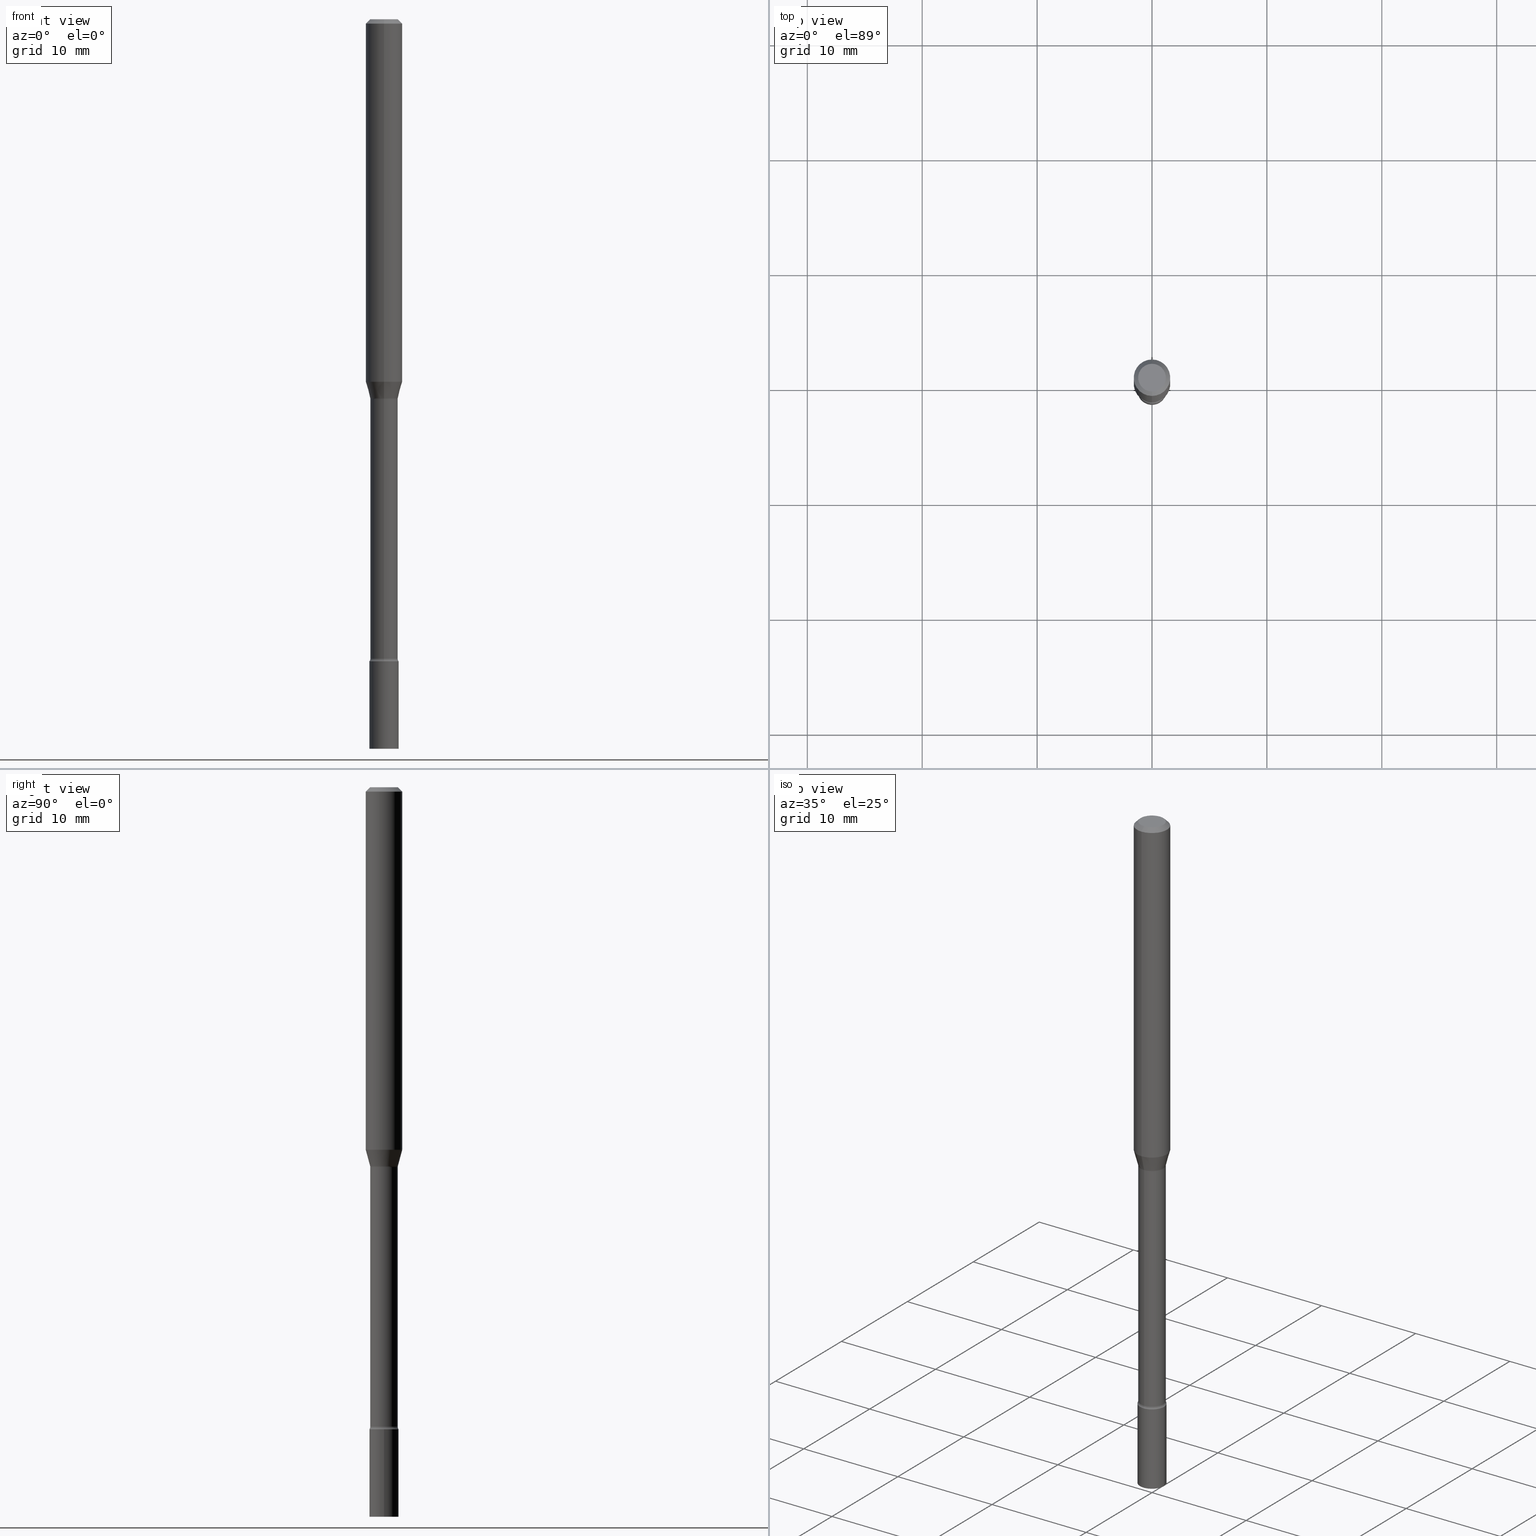
[diagram: canonical four-view strip — front | top / right | iso, engineering-drawing reading convention]
A machine part, canonical four-view strip (front | top / right | iso — engineering-drawing reading convention). The complete STEP part file that produces these views, byte-faithful:
ISO-10303-21;
HEADER;
FILE_DESCRIPTION (( 'STEP AP203' ),
    '1' );
FILE_NAME ('03450.STEP',
    '2024-03-08T21:24:03',
    ( '' ),
    ( '' ),
    'SwSTEP 2.0',
    'SolidWorks 2023',
    '' );
FILE_SCHEMA (( 'CONFIG_CONTROL_DESIGN' ));
ENDSEC;

DATA;
#1 = EDGE_CURVE ( 'NONE', #82, #221, #288, .T. ) ;
#2 = EDGE_LOOP ( 'NONE', ( #352, #120, #276, #243 ) ) ;
#3 = ORIENTED_EDGE ( 'NONE', *, *, #309, .F. ) ;
#4 = CARTESIAN_POINT ( 'NONE',  ( 0.000000000000000000, 0.000000000000000000, 0.000000000000000000 ) ) ;
#5 = DIRECTION ( 'NONE',  ( -1.000000000000000000, 6.982962677686265922E-15, -4.883557194083112340E-29 ) ) ;
#6 = APPLICATION_PROTOCOL_DEFINITION ( 'international standard', 'config_control_design', 1994, #441 ) ;
#7 = DIRECTION ( 'NONE',  ( -2.445468806185136877E-29, 3.491481338843145188E-15, 1.000000000000000000 ) ) ;
#8 = AXIS2_PLACEMENT_3D ( 'NONE', #122, #209, #399 ) ;
#9 = CIRCLE ( 'NONE', #197, 0.06250000000000000000 ) ;
#10 = EDGE_CURVE ( 'NONE', #221, #286, #338, .T. ) ;
#11 = DIRECTION ( 'NONE',  ( -2.445545263393186245E-29, 3.491371847769544536E-15, 1.000000000000000000 ) ) ;
#12 = FACE_OUTER_BOUND ( 'NONE', #202, .T. ) ;
#13 = CC_DESIGN_DATE_AND_TIME_ASSIGNMENT ( #222, #327, ( #64 ) ) ;
#14 = CC_DESIGN_PERSON_AND_ORGANIZATION_ASSIGNMENT ( #258, #289, ( #19 ) ) ;
#15 = FACE_OUTER_BOUND ( 'NONE', #52, .T. ) ;
#16 = ORIENTED_EDGE ( 'NONE', *, *, #88, .F. ) ;
#17 = PERSON_AND_ORGANIZATION ( #25, #78 ) ;
#18 = AXIS2_PLACEMENT_3D ( 'NONE', #323, #296, #102 ) ;
#19 = PRODUCT_DEFINITION_FORMATION_WITH_SPECIFIED_SOURCE ( 'ANY', '', #123, .NOT_KNOWN. ) ;
#20 = VERTEX_POINT ( 'NONE', #104 ) ;
#21 = EDGE_CURVE ( 'NONE', #457, #286, #61, .T. ) ;
#22 = DIRECTION ( 'NONE',  ( 6.982962677686265922E-15, 1.000000000000000000, -3.491371847769544536E-15 ) ) ;
#23 = ORIENTED_EDGE ( 'NONE', *, *, #427, .T. ) ;
#24 = CARTESIAN_POINT ( 'NONE',  ( -4.364351673553610517E-16, -0.06250000000000431599, -1.242153212482682623 ) ) ;
#25 = PERSON ( 'UNSPECIFIED', 'UNSPECIFIED', 'UNSPECIFIED', ('UNSPECIFIED'), ('UNSPECIFIED'), ('UNSPECIFIED') ) ;
#26 = ORIENTED_EDGE ( 'NONE', *, *, #303, .T. ) ;
#27 = CARTESIAN_POINT ( 'NONE',  ( 3.183938729182273846E-29, -4.545820674074168441E-15, -1.301974787463811456 ) ) ;
#28 = CIRCLE ( 'NONE', #507, 0.05000000000000000278 ) ;
#29 = DIRECTION ( 'NONE',  ( -2.445468806185136597E-29, 3.491481338843145583E-15, 1.000000000000000000 ) ) ;
#30 = PLANE ( 'NONE',  #254 ) ;
#31 = CC_DESIGN_PERSON_AND_ORGANIZATION_ASSIGNMENT ( #343, #180, ( #19 ) ) ;
#32 = CARTESIAN_POINT ( 'NONE',  ( 0.000000000000000000, 0.000000000000000000, 0.000000000000000000 ) ) ;
#33 = DIRECTION ( 'NONE',  ( -2.445545263393186245E-29, 3.491371847769544536E-15, 1.000000000000000000 ) ) ;
#34 = AXIS2_PLACEMENT_3D ( 'NONE', #509, #66, #185 ) ;
#35 = CC_DESIGN_SECURITY_CLASSIFICATION ( #84, ( #19 ) ) ;
#36 = FACE_OUTER_BOUND ( 'NONE', #398, .T. ) ;
#37 = CARTESIAN_POINT ( 'NONE',  ( 3.174543969192077220E-29, -4.532123616540823741E-15, -1.298092501787273534 ) ) ;
#38 = ORIENTED_EDGE ( 'NONE', *, *, #283, .F. ) ;
#39 = CARTESIAN_POINT ( 'NONE',  ( -0.05000000000000000278, -7.849709778401342953E-15, -2.200000000000000178 ) ) ;
#40 = ORIENTED_EDGE ( 'NONE', *, *, #106, .T. ) ;
#41 =( GEOMETRIC_REPRESENTATION_CONTEXT ( 3 ) GLOBAL_UNCERTAINTY_ASSIGNED_CONTEXT ( ( #389 ) ) GLOBAL_UNIT_ASSIGNED_CONTEXT ( ( #299, #74, #160 ) ) REPRESENTATION_CONTEXT ( 'NONE', 'WORKASPACE' ) );
#42 = ORIENTED_EDGE ( 'NONE', *, *, #273, .T. ) ;
#43 = CARTESIAN_POINT ( 'NONE',  ( 3.339550858073009772E-16, 0.04699999999999546207, -1.301974787463811678 ) ) ;
#44 = EDGE_LOOP ( 'NONE', ( #256, #247, #284, #330 ) ) ;
#45 = DIRECTION ( 'NONE',  ( -2.445545263393186245E-29, 3.491371847769544536E-15, 1.000000000000000000 ) ) ;
#46 = ORIENTED_EDGE ( 'NONE', *, *, #21, .F. ) ;
#47 = DIRECTION ( 'NONE',  ( -2.445468806185136597E-29, 3.491481338843145583E-15, 1.000000000000000000 ) ) ;
#48 = CARTESIAN_POINT ( 'NONE',  ( 5.380199579465010019E-29, -7.681018065092997900E-15, -2.200000000000000178 ) ) ;
#49 = AXIS2_PLACEMENT_3D ( 'NONE', #466, #293, #148 ) ;
#50 = APPROVAL_PERSON_ORGANIZATION ( #17, #385, #418 ) ;
#51 = DIRECTION ( 'NONE',  ( -2.445545263393186245E-29, 3.491371847769544536E-15, 1.000000000000000000 ) ) ;
#52 = EDGE_LOOP ( 'NONE', ( #332, #376, #435, #519 ) ) ;
#53 = FACE_OUTER_BOUND ( 'NONE', #198, .T. ) ;
#54 = ORIENTED_EDGE ( 'NONE', *, *, #10, .T. ) ;
#55 = COORDINATED_UNIVERSAL_TIME_OFFSET ( 5, 0, .BEHIND. ) ;
#56 = DIRECTION ( 'NONE',  ( 1.839019923739596765E-15, 0.2588190451025244587, 0.9659258262890673130 ) ) ;
#57 = CIRCLE ( 'NONE', #497, 0.01500000000000001853 ) ;
#58 = EDGE_LOOP ( 'NONE', ( #96, #213, #260, #92 ) ) ;
#59 = CALENDAR_DATE ( 2024, 8, 3 ) ;
#60 = DIRECTION ( 'NONE',  ( -2.438088387897960049E-29, 3.491481338843145188E-15, 1.000000000000000000 ) ) ;
#61 = LINE ( 'NONE', #184, #479 ) ;
#62 = DATE_AND_TIME ( #504, #244 ) ;
#63 = DIRECTION ( 'NONE',  ( 2.445545263393185965E-29, -3.491371847769544536E-15, -1.000000000000000000 ) ) ;
#64 = PRODUCT_DEFINITION ( 'UNKNOWN', '', #19, #187 ) ;
#65 = ADVANCED_FACE ( 'NONE', ( #252 ), #464, .T. ) ;
#66 = DIRECTION ( 'NONE',  ( -2.445545263393186245E-29, 3.491371847769544536E-15, 1.000000000000000000 ) ) ;
#67 = ADVANCED_FACE ( 'NONE', ( #12 ), #306, .F. ) ;
#68 = CIRCLE ( 'NONE', #472, 0.04751111260566399236 ) ;
#69 = AXIS2_PLACEMENT_3D ( 'NONE', #319, #200, #130 ) ;
#70 = DIRECTION ( 'NONE',  ( 1.000000000000000000, -6.982962677686265922E-15, 4.876176775795935793E-29 ) ) ;
#71 = DIRECTION ( 'NONE',  ( -1.807323732225326589E-15, -0.2588190451025176864, 0.9659258262890690894 ) ) ;
#72 = CARTESIAN_POINT ( 'NONE',  ( -3.281992458512017981E-16, -0.04700000000000777167, -2.190999999999999837 ) ) ;
#73 = ADVANCED_FACE ( 'NONE', ( #295 ), #354, .T. ) ;
#74 =( NAMED_UNIT ( * ) PLANE_ANGLE_UNIT ( ) SI_UNIT ( $, .RADIAN. ) );
#75 = VECTOR ( 'NONE', #264, 39.37007874015748143 ) ;
#76 = DIRECTION ( 'NONE',  ( -6.982962677686265922E-15, -1.000000000000000000, 4.370956789862821150E-15 ) ) ;
#77 = AXIS2_PLACEMENT_3D ( 'NONE', #287, #100, #371 ) ;
#78 = ORGANIZATION ( 'UNSPECIFIED', 'UNSPECIFIED', '' ) ;
#79 = DIRECTION ( 'NONE',  ( -6.982962677686266711E-15, -1.000000000000000000, 3.491371847769544930E-15 ) ) ;
#80 = VERTEX_POINT ( 'NONE', #72 ) ;
#81 = PLANE ( 'NONE',  #520 ) ;
#82 = VERTEX_POINT ( 'NONE', #486 ) ;
#83 = CARTESIAN_POINT ( 'NONE',  ( -4.364351673553912750E-16, -0.06250000000000005551, -0.01499999999999981209 ) ) ;
#84 = SECURITY_CLASSIFICATION ( '', '', #378 ) ;
#85 = MECHANICAL_CONTEXT ( 'NONE', #450, 'mechanical' ) ;
#86 = ORIENTED_EDGE ( 'NONE', *, *, #251, .F. ) ;
#87 = CARTESIAN_POINT ( 'NONE',  ( 0.05000000000000000278, -3.491481338843133848E-16, 2.438088387897968247E-30 ) ) ;
#88 = EDGE_CURVE ( 'NONE', #80, #205, #423, .T. ) ;
#89 = APPROVAL_STATUS ( 'not_yet_approved' ) ;
#90 = ORIENTED_EDGE ( 'NONE', *, *, #502, .T. ) ;
#91 = EDGE_CURVE ( 'NONE', #440, #216, #68, .T. ) ;
#92 = ORIENTED_EDGE ( 'NONE', *, *, #426, .F. ) ;
#93 = CARTESIAN_POINT ( 'NONE',  ( 3.446132268437026374E-16, 0.04699999999999247141, -2.191000000000000281 ) ) ;
#94 = CARTESIAN_POINT ( 'NONE',  ( 5.358189672094472202E-29, -7.649595718463072827E-15, -2.191000000000000281 ) ) ;
#95 = DIRECTION ( 'NONE',  ( -2.445545263393186245E-29, 3.491371847769544536E-15, 1.000000000000000000 ) ) ;
#96 = ORIENTED_EDGE ( 'NONE', *, *, #267, .F. ) ;
#97 = CARTESIAN_POINT ( 'NONE',  ( 6.113672015462842613E-29, -8.728703347107864943E-15, -2.500000000000000000 ) ) ;
#98 = EDGE_CURVE ( 'NONE', #500, #391, #195, .T. ) ;
#99 = ORIENTED_EDGE ( 'NONE', *, *, #1, .T. ) ;
#100 = DIRECTION ( 'NONE',  ( -2.445545263393186245E-29, 3.491371847769544536E-15, 1.000000000000000000 ) ) ;
#101 = DIRECTION ( 'NONE',  ( -2.445545263393186245E-29, 3.491371847769544536E-15, 1.000000000000000000 ) ) ;
#102 = DIRECTION ( 'NONE',  ( -6.982962677686265922E-15, -1.000000000000000000, 3.491371847769544536E-15 ) ) ;
#103 = TOROIDAL_SURFACE ( 'NONE', #307, 0.06200000000000000649, 0.01500000000000002373 ) ;
#104 = CARTESIAN_POINT ( 'NONE',  ( -3.281992458512227029E-16, -0.04700000000000454509, -1.301974787463811012 ) ) ;
#105 = CARTESIAN_POINT ( 'NONE',  ( -4.329436860164957593E-16, -0.06200000000000776418, -2.190999999999999837 ) ) ;
#106 = EDGE_CURVE ( 'NONE', #463, #238, #456, .T. ) ;
#107 = CARTESIAN_POINT ( 'NONE',  ( 3.668317895089786549E-31, -5.237057771654327552E-17, -0.01500000000000003067 ) ) ;
#108 = PERSON_AND_ORGANIZATION ( #25, #78 ) ;
#109 = CARTESIAN_POINT ( 'NONE',  ( 6.113672015462842613E-29, -8.728703347107864943E-15, -2.500000000000000000 ) ) ;
#110 = DIRECTION ( 'NONE',  ( 6.982962677686265922E-15, 1.000000000000000000, -3.483106191921935554E-15 ) ) ;
#111 = DIRECTION ( 'NONE',  ( -6.982962677686265922E-15, -1.000000000000000000, 3.491371847769544536E-15 ) ) ;
#112 = AXIS2_PLACEMENT_3D ( 'NONE', #48, #405, #443 ) ;
#113 = CARTESIAN_POINT ( 'NONE',  ( 4.440892098500625669E-16, 0.06250000000000000000, -2.182107404855965335E-16 ) ) ;
#114 = ADVANCED_FACE ( 'NONE', ( #170 ), #382, .F. ) ;
#115 = CARTESIAN_POINT ( 'NONE',  ( 5.358189672094472202E-29, -7.649595718463072827E-15, -2.191000000000000281 ) ) ;
#116 = CARTESIAN_POINT ( 'NONE',  ( 5.380031373607300737E-29, -7.681258945454920203E-15, -2.200000000000000178 ) ) ;
#117 = CARTESIAN_POINT ( 'NONE',  ( 7.072299677120293294E-46, -1.009673726399458188E-31, -2.891911175386506764E-17 ) ) ;
#118 = AXIS2_PLACEMENT_3D ( 'NONE', #97, #47, #409 ) ;
#119 =( LENGTH_UNIT ( ) NAMED_UNIT ( * ) SI_UNIT ( $, .METRE. ) );
#120 = ORIENTED_EDGE ( 'NONE', *, *, #511, .T. ) ;
#121 = ORIENTED_EDGE ( 'NONE', *, *, #297, .F. ) ;
#122 = CARTESIAN_POINT ( 'NONE',  ( 5.358022154351634795E-29, -7.649835613405333139E-15, -2.191000000000000281 ) ) ;
#123 = PRODUCT ( '03450', '03450', '', ( #85 ) ) ;
#124 = APPLICATION_PROTOCOL_DEFINITION ( 'international standard', 'config_control_design', 1994, #450 ) ;
#125 = ORIENTED_EDGE ( 'NONE', *, *, #347, .T. ) ;
#126 = CIRCLE ( 'NONE', #207, 0.01499999999999999424 ) ;
#127 = CIRCLE ( 'NONE', #328, 0.06250000000000000000 ) ;
#128 = DIRECTION ( 'NONE',  ( -6.982962677686265922E-15, -1.000000000000000000, 5.749913744050246675E-15 ) ) ;
#129 = ORIENTED_EDGE ( 'NONE', *, *, #10, .F. ) ;
#130 = DIRECTION ( 'NONE',  ( 6.982962677686265922E-15, 1.000000000000000000, -3.483106191921935554E-15 ) ) ;
#131 = EDGE_LOOP ( 'NONE', ( #487, #16, #161, #410 ) ) ;
#132 = VERTEX_POINT ( 'NONE', #43 ) ;
#133 = AXIS2_PLACEMENT_3D ( 'NONE', #403, #51, #366 ) ;
#134 = CARTESIAN_POINT ( 'NONE',  ( 0.000000000000000000, 0.000000000000000000, 0.000000000000000000 ) ) ;
#135 = LOCAL_TIME ( 16, 24, 3.000000000000000000, #204 ) ;
#136 = EDGE_LOOP ( 'NONE', ( #172, #455, #157, #313 ) ) ;
#137 = CARTESIAN_POINT ( 'NONE',  ( 3.491481338843744722E-16, 0.04999999999999128059, -2.500000000000000000 ) ) ;
#138 = ORIENTED_EDGE ( 'NONE', *, *, #21, .T. ) ;
#139 = LINE ( 'NONE', #337, #394 ) ;
#140 = CARTESIAN_POINT ( 'NONE',  ( -4.287811248607203282E-16, -0.06250000000000005551, -0.01499999999999981209 ) ) ;
#141 = CALENDAR_DATE ( 2024, 8, 3 ) ;
#142 = DIRECTION ( 'NONE',  ( -2.445468806185136877E-29, 3.491481338843145188E-15, 1.000000000000000000 ) ) ;
#143 = EDGE_CURVE ( 'NONE', #216, #20, #57, .T. ) ;
#144 = CIRCLE ( 'NONE', #225, 0.04700000000000012501 ) ;
#145 = DIRECTION ( 'NONE',  ( -6.982962677686265922E-15, -1.000000000000000000, 3.491371847769544536E-15 ) ) ;
#146 = PERSON_AND_ORGANIZATION ( #25, #78 ) ;
#147 = CARTESIAN_POINT ( 'NONE',  ( 4.405364961713164449E-16, 0.06199999999999247086, -2.191000000000000281 ) ) ;
#148 = DIRECTION ( 'NONE',  ( 1.000000000000000000, -6.982962677686274599E-15, 0.000000000000000000 ) ) ;
#149 = LENGTH_MEASURE_WITH_UNIT ( LENGTH_MEASURE( 0.02539999999999999897 ), #119 );
#150 = AXIS2_PLACEMENT_3D ( 'NONE', #181, #29, #261 ) ;
#151 = AXIS2_PLACEMENT_3D ( 'NONE', #117, #194, #152 ) ;
#152 = DIRECTION ( 'NONE',  ( -6.982962677686266711E-15, -1.000000000000000000, 3.491371847769544930E-15 ) ) ;
#153 = DIRECTION ( 'NONE',  ( -2.445545263393186245E-29, 3.491371847769544536E-15, 1.000000000000000000 ) ) ;
#154 = ADVANCED_FACE ( 'NONE', ( #15 ), #174, .T. ) ;
#155 = EDGE_CURVE ( 'NONE', #216, #440, #269, .T. ) ;
#156 = DIRECTION ( 'NONE',  ( -2.445545263393186245E-29, 3.491371847769544536E-15, 1.000000000000000000 ) ) ;
#157 = ORIENTED_EDGE ( 'NONE', *, *, #476, .F. ) ;
#158 = AXIS2_PLACEMENT_3D ( 'NONE', #505, #224, #290 ) ;
#159 = PRODUCT_DEFINITION_SHAPE ( 'NONE', 'NONE',  #64 ) ;
#160 =( NAMED_UNIT ( * ) SI_UNIT ( $, .STERADIAN. ) SOLID_ANGLE_UNIT ( ) );
#161 = ORIENTED_EDGE ( 'NONE', *, *, #309, .T. ) ;
#162 = DIRECTION ( 'NONE',  ( -2.445545263393186245E-29, 3.491371847769544536E-15, 1.000000000000000000 ) ) ;
#163 = EDGE_CURVE ( 'NONE', #20, #132, #217, .T. ) ;
#164 = LINE ( 'NONE', #314, #300 ) ;
#165 = CIRCLE ( 'NONE', #362, 0.04749999999999999362 ) ;
#166 = FACE_OUTER_BOUND ( 'NONE', #446, .T. ) ;
#167 = CALENDAR_DATE ( 2024, 8, 3 ) ;
#168 = EDGE_LOOP ( 'NONE', ( #26, #23 ) ) ;
#169 = FACE_OUTER_BOUND ( 'NONE', #44, .T. ) ;
#170 = FACE_OUTER_BOUND ( 'NONE', #131, .T. ) ;
#171 = ORIENTED_EDGE ( 'NONE', *, *, #427, .F. ) ;
#172 = ORIENTED_EDGE ( 'NONE', *, *, #155, .T. ) ;
#173 = AXIS2_PLACEMENT_3D ( 'NONE', #266, #420, #145 ) ;
#174 = CYLINDRICAL_SURFACE ( 'NONE', #454, 0.06250000000000000000 ) ;
#175 = CIRCLE ( 'NONE', #294, 0.01500000000000001853 ) ;
#176 = DIRECTION ( 'NONE',  ( 2.445545263393186245E-29, -3.491371847769544536E-15, -1.000000000000000000 ) ) ;
#177 = ORIENTED_EDGE ( 'NONE', *, *, #347, .F. ) ;
#178 = DIRECTION ( 'NONE',  ( -2.445545263393186245E-29, 3.491371847769544536E-15, 1.000000000000000000 ) ) ;
#179 = ORIENTED_EDGE ( 'NONE', *, *, #183, .T. ) ;
#180 = PERSON_AND_ORGANIZATION_ROLE ( 'creator' ) ;
#181 = CARTESIAN_POINT ( 'NONE',  ( 0.000000000000000000, 0.000000000000000000, 0.000000000000000000 ) ) ;
#182 = ADVANCED_FACE ( 'NONE', ( #166 ), #285, .T. ) ;
#183 = EDGE_CURVE ( 'NONE', #80, #20, #164, .T. ) ;
#184 = CARTESIAN_POINT ( 'NONE',  ( 4.364351673553919652E-16, 0.06249999999999995143, -0.01500000000000024751 ) ) ;
#185 = DIRECTION ( 'NONE',  ( -6.982962677686265922E-15, -1.000000000000000000, 5.812442539711197800E-15 ) ) ;
#186 = AXIS2_PLACEMENT_3D ( 'NONE', #107, #176, #110 ) ;
#187 = DESIGN_CONTEXT ( 'detailed design', #441, 'design' ) ;
#188 = DIRECTION ( 'NONE',  ( 1.000000000000000000, -7.105427357601001070E-15, 4.926314167663154460E-29 ) ) ;
#189 = CARTESIAN_POINT ( 'NONE',  ( 3.316907271900976096E-16, 0.04749999999999999362, -1.802997186459858966E-16 ) ) ;
#190 = CARTESIAN_POINT ( 'NONE',  ( 3.840629472727447874E-16, 0.04749999999999999362, -1.947592745229184365E-16 ) ) ;
#191 = VECTOR ( 'NONE', #142, 39.37007874015748143 ) ;
#192 = DIRECTION ( 'NONE',  ( -6.982962677686265922E-15, -1.000000000000000000, 4.370956789862821150E-15 ) ) ;
#193 = DIRECTION ( 'NONE',  ( 1.000000000000000000, -6.982962677686274599E-15, 0.000000000000000000 ) ) ;
#194 = DIRECTION ( 'NONE',  ( -2.445545263393186245E-29, 3.491371847769544536E-15, 1.000000000000000000 ) ) ;
#195 = CIRCLE ( 'NONE', #112, 0.05000000000000000278 ) ;
#196 = DIRECTION ( 'NONE',  ( -2.445545263393186245E-29, 3.491371847769544536E-15, 1.000000000000000000 ) ) ;
#197 = AXIS2_PLACEMENT_3D ( 'NONE', #482, #196, #192 ) ;
#198 = EDGE_LOOP ( 'NONE', ( #368, #218 ) ) ;
#199 = EDGE_CURVE ( 'NONE', #463, #503, #277, .T. ) ;
#200 = DIRECTION ( 'NONE',  ( 2.445545263393186245E-29, -3.491371847769544536E-15, -1.000000000000000000 ) ) ;
#201 = PERSON_AND_ORGANIZATION ( #25, #78 ) ;
#202 = EDGE_LOOP ( 'NONE', ( #325, #485, #322, #210 ) ) ;
#203 = CARTESIAN_POINT ( 'NONE',  ( 3.174543969192077220E-29, -4.532123616540823741E-15, -1.298092501787273534 ) ) ;
#204 = COORDINATED_UNIVERSAL_TIME_OFFSET ( 5, 0, .BEHIND. ) ;
#205 = VERTEX_POINT ( 'NONE', #93 ) ;
#206 = FACE_OUTER_BOUND ( 'NONE', #373, .T. ) ;
#207 = AXIS2_PLACEMENT_3D ( 'NONE', #147, #188, #220 ) ;
#208 = LOCAL_TIME ( 16, 24, 3.000000000000000000, #380 ) ;
#209 = DIRECTION ( 'NONE',  ( -2.445545263393186245E-29, 3.491371847769544536E-15, 1.000000000000000000 ) ) ;
#210 = ORIENTED_EDGE ( 'NONE', *, *, #163, .T. ) ;
#211 = APPROVAL_DATE_TIME ( #282, #494 ) ;
#212 = ADVANCED_FACE ( 'NONE', ( #53 ), #253, .T. ) ;
#213 = ORIENTED_EDGE ( 'NONE', *, *, #91, .T. ) ;
#214 = PERSON_AND_ORGANIZATION_ROLE ( 'classification_officer' ) ;
#215 = CC_DESIGN_PERSON_AND_ORGANIZATION_ASSIGNMENT ( #108, #214, ( #84 ) ) ;
#216 = VERTEX_POINT ( 'NONE', #248 ) ;
#217 = CIRCLE ( 'NONE', #274, 0.04700000000000000705 ) ;
#218 = ORIENTED_EDGE ( 'NONE', *, *, #280, .F. ) ;
#219 = SHAPE_DEFINITION_REPRESENTATION ( #159, #229 ) ;
#220 = DIRECTION ( 'NONE',  ( 7.105427357601001859E-15, 1.000000000000000000, 0.000000000000000000 ) ) ;
#221 = VERTEX_POINT ( 'NONE', #83 ) ;
#222 = DATE_AND_TIME ( #318, #424 ) ;
#223 = DIRECTION ( 'NONE',  ( -1.000000000000000000, 6.982962677686265922E-15, -4.883557194083112340E-29 ) ) ;
#224 = DIRECTION ( 'NONE',  ( -2.445468806185136597E-29, 3.491481338843145583E-15, 1.000000000000000000 ) ) ;
#225 = AXIS2_PLACEMENT_3D ( 'NONE', #115, #386, #475 ) ;
#226 = CARTESIAN_POINT ( 'NONE',  ( 3.375867592983784045E-16, 0.04751111260565945432, -1.298092501787273756 ) ) ;
#227 = ADVANCED_FACE ( 'NONE', ( #245 ), #396, .T. ) ;
#228 = CARTESIAN_POINT ( 'NONE',  ( 3.668317895089786549E-31, -5.237057771654327552E-17, -0.01500000000000003067 ) ) ;
#229 = ADVANCED_BREP_SHAPE_REPRESENTATION ( '03450', ( #484, #471, #317 ), #41 ) ;
#230 = CLOSED_SHELL ( 'NONE', ( #235, #255, #240, #212 ) ) ;
#231 = VECTOR ( 'NONE', #7, 39.37007874015748143 ) ;
#232 = CIRCLE ( 'NONE', #372, 0.05000000000000000278 ) ;
#233 = LINE ( 'NONE', #351, #445 ) ;
#234 = ADVANCED_FACE ( 'NONE', ( #206 ), #513, .F. ) ;
#235 = ADVANCED_FACE ( 'NONE', ( #169 ), #421, .T. ) ;
#236 = DIRECTION ( 'NONE',  ( -2.445545263393186245E-29, 3.491371847769544536E-15, 1.000000000000000000 ) ) ;
#237 = DIRECTION ( 'NONE',  ( 1.000000000000000000, -7.105427357601001070E-15, 4.926314167663154460E-29 ) ) ;
#238 = VERTEX_POINT ( 'NONE', #344 ) ;
#239 = ORIENTED_EDGE ( 'NONE', *, *, #436, .F. ) ;
#240 = ADVANCED_FACE ( 'NONE', ( #501 ), #383, .T. ) ;
#241 = AXIS2_PLACEMENT_3D ( 'NONE', #4, #162, #488 ) ;
#242 = CARTESIAN_POINT ( 'NONE',  ( 0.000000000000000000, 0.000000000000000000, 0.000000000000000000 ) ) ;
#243 = ORIENTED_EDGE ( 'NONE', *, *, #183, .F. ) ;
#244 = LOCAL_TIME ( 16, 24, 3.000000000000000000, #499 ) ;
#245 = FACE_OUTER_BOUND ( 'NONE', #400, .T. ) ;
#246 = DIRECTION ( 'NONE',  ( -6.982962677686265922E-15, -1.000000000000000000, 3.491371847769544536E-15 ) ) ;
#247 = ORIENTED_EDGE ( 'NONE', *, *, #283, .T. ) ;
#248 = CARTESIAN_POINT ( 'NONE',  ( -3.317683261006693907E-16, -0.04751111260566852346, -1.298092501787273090 ) ) ;
#249 = APPROVAL_ROLE ( '' ) ;
#250 = ORIENTED_EDGE ( 'NONE', *, *, #91, .F. ) ;
#251 = EDGE_CURVE ( 'NONE', #281, #221, #139, .T. ) ;
#252 = FACE_OUTER_BOUND ( 'NONE', #136, .T. ) ;
#253 = PLANE ( 'NONE',  #340 ) ;
#254 = AXIS2_PLACEMENT_3D ( 'NONE', #189, #63, #22 ) ;
#255 = ADVANCED_FACE ( 'NONE', ( #468 ), #415, .T. ) ;
#256 = ORIENTED_EDGE ( 'NONE', *, *, #199, .T. ) ;
#257 = EDGE_LOOP ( 'NONE', ( #38, #363, #40, #171 ) ) ;
#258 = PERSON_AND_ORGANIZATION ( #25, #78 ) ;
#259 = CARTESIAN_POINT ( 'NONE',  ( 5.380031373607300737E-29, -7.681258945454920203E-15, -2.200000000000000178 ) ) ;
#260 = ORIENTED_EDGE ( 'NONE', *, *, #477, .T. ) ;
#261 = DIRECTION ( 'NONE',  ( 1.000000000000000000, -6.982962677686267499E-15, 4.876176775795936353E-29 ) ) ;
#262 = CIRCLE ( 'NONE', #315, 0.01499999999999999424 ) ;
#263 = CIRCLE ( 'NONE', #514, 0.06250000000000000000 ) ;
#264 = DIRECTION ( 'NONE',  ( -4.851104656540964275E-15, -0.7071067811865500152, -0.7071067811865450192 ) ) ;
#265 = CARTESIAN_POINT ( 'NONE',  ( 5.380199579465010019E-29, -7.681018065092997900E-15, -2.200000000000000178 ) ) ;
#266 = CARTESIAN_POINT ( 'NONE',  ( 3.183938729182273846E-29, -4.545820674074168441E-15, -1.301974787463811456 ) ) ;
#267 = EDGE_CURVE ( 'NONE', #440, #310, #462, .T. ) ;
#268 = FACE_OUTER_BOUND ( 'NONE', #451, .T. ) ;
#269 = CIRCLE ( 'NONE', #402, 0.04751111260566399236 ) ;
#270 = CARTESIAN_POINT ( 'NONE',  ( 3.491481338843671260E-16, 0.04999999999999232142, -2.200000000000000178 ) ) ;
#271 = CARTESIAN_POINT ( 'NONE',  ( 0.05000000000000000278, -9.077851480992178278E-15, -2.500000000000000000 ) ) ;
#272 = CARTESIAN_POINT ( 'NONE',  ( 4.405364961712939623E-16, 0.06199999999999546152, -1.301974787463811678 ) ) ;
#273 = EDGE_CURVE ( 'NONE', #205, #391, #126, .T. ) ;
#274 = AXIS2_PLACEMENT_3D ( 'NONE', #329, #358, #397 ) ;
#275 = DIRECTION ( 'NONE',  ( -2.445545263393185965E-29, 3.491371847769544536E-15, 1.000000000000000000 ) ) ;
#276 = ORIENTED_EDGE ( 'NONE', *, *, #163, .F. ) ;
#277 = CIRCLE ( 'NONE', #118, 0.05000000000000000278 ) ;
#278 = PERSON_AND_ORGANIZATION_ROLE ( 'creator' ) ;
#279 = ORIENTED_EDGE ( 'NONE', *, *, #320, .T. ) ;
#280 = EDGE_CURVE ( 'NONE', #503, #463, #414, .T. ) ;
#281 = VERTEX_POINT ( 'NONE', #24 ) ;
#282 = DATE_AND_TIME ( #167, #135 ) ;
#283 = EDGE_CURVE ( 'NONE', #503, #388, #334, .T. ) ;
#284 = ORIENTED_EDGE ( 'NONE', *, *, #303, .F. ) ;
#285 = CONICAL_SURFACE ( 'NONE', #69, 0.06250000000000000000, 0.7853981633974483900 ) ;
#286 = VERTEX_POINT ( 'NONE', #459 ) ;
#287 = CARTESIAN_POINT ( 'NONE',  ( 0.000000000000000000, 0.000000000000000000, 0.000000000000000000 ) ) ;
#288 = LINE ( 'NONE', #140, #75 ) ;
#289 = PERSON_AND_ORGANIZATION_ROLE ( 'design_supplier' ) ;
#290 = DIRECTION ( 'NONE',  ( 1.000000000000000000, -6.982962677686267499E-15, 4.876176775795936353E-29 ) ) ;
#291 = DIRECTION ( 'NONE',  ( -6.982962677686265922E-15, -1.000000000000000000, 3.483106191921935554E-15 ) ) ;
#292 = APPROVAL_STATUS ( 'not_yet_approved' ) ;
#293 = DIRECTION ( 'NONE',  ( -2.445468806185136597E-29, 3.491481338843145583E-15, 1.000000000000000000 ) ) ;
#294 = AXIS2_PLACEMENT_3D ( 'NONE', #272, #237, #438 ) ;
#295 = FACE_OUTER_BOUND ( 'NONE', #357, .T. ) ;
#296 = DIRECTION ( 'NONE',  ( -2.445545263393186245E-29, 3.491371847769544536E-15, 1.000000000000000000 ) ) ;
#297 = EDGE_CURVE ( 'NONE', #132, #20, #490, .T. ) ;
#298 = DIRECTION ( 'NONE',  ( -6.982962677686266711E-15, -1.000000000000000000, 0.000000000000000000 ) ) ;
#299 =( CONVERSION_BASED_UNIT ( 'INCH', #149 ) LENGTH_UNIT ( ) NAMED_UNIT ( #516 ) );
#300 = VECTOR ( 'NONE', #489, 39.37007874015748143 ) ;
#301 = APPROVAL_PERSON_ORGANIZATION ( #448, #494, #249 ) ;
#302 = FACE_OUTER_BOUND ( 'NONE', #58, .T. ) ;
#303 = EDGE_CURVE ( 'NONE', #238, #388, #480, .T. ) ;
#304 = CYLINDRICAL_SURFACE ( 'NONE', #425, 0.04700000000000006256 ) ;
#305 = DIRECTION ( 'NONE',  ( -6.982962677686265922E-15, -1.000000000000000000, 3.483106191921935554E-15 ) ) ;
#306 = TOROIDAL_SURFACE ( 'NONE', #173, 0.06200000000000000649, 0.01500000000000002373 ) ;
#307 = AXIS2_PLACEMENT_3D ( 'NONE', #27, #510, #111 ) ;
#308 = CARTESIAN_POINT ( 'NONE',  ( 3.908379845742357699E-16, 0.04751111260565945432, -1.298092501787273756 ) ) ;
#309 = EDGE_CURVE ( 'NONE', #80, #500, #262, .T. ) ;
#310 = VERTEX_POINT ( 'NONE', #422 ) ;
#311 = APPROVAL ( #292, 'UNSPECIFIED' ) ;
#312 = DIRECTION ( 'NONE',  ( 0.000000000000000000, 0.000000000000000000, 1.000000000000000000 ) ) ;
#313 = ORIENTED_EDGE ( 'NONE', *, *, #477, .F. ) ;
#314 = CARTESIAN_POINT ( 'NONE',  ( -3.281992458512549969E-16, -0.04700000000000006256, 1.640944768451688084E-16 ) ) ;
#315 = AXIS2_PLACEMENT_3D ( 'NONE', #105, #223, #298 ) ;
#316 = ORIENTED_EDGE ( 'NONE', *, *, #433, .T. ) ;
#317 = AXIS2_PLACEMENT_3D ( 'NONE', #242, #312, #321 ) ;
#318 = CALENDAR_DATE ( 2024, 8, 3 ) ;
#319 = CARTESIAN_POINT ( 'NONE',  ( 3.668317895089786549E-31, -5.237057771654327552E-17, -0.01500000000000003067 ) ) ;
#320 = EDGE_CURVE ( 'NONE', #391, #500, #28, .T. ) ;
#321 = DIRECTION ( 'NONE',  ( 1.000000000000000000, 0.000000000000000000, 0.000000000000000000 ) ) ;
#322 = ORIENTED_EDGE ( 'NONE', *, *, #143, .T. ) ;
#323 = CARTESIAN_POINT ( 'NONE',  ( 5.358022154351634795E-29, -7.649835613405333139E-15, -2.191000000000000281 ) ) ;
#324 = ORIENTED_EDGE ( 'NONE', *, *, #495, .T. ) ;
#325 = ORIENTED_EDGE ( 'NONE', *, *, #433, .F. ) ;
#326 = ADVANCED_FACE ( 'NONE', ( #419 ), #103, .F. ) ;
#327 = DATE_TIME_ROLE ( 'creation_date' ) ;
#328 = AXIS2_PLACEMENT_3D ( 'NONE', #428, #474, #76 ) ;
#329 = CARTESIAN_POINT ( 'NONE',  ( 3.184038274539474343E-29, -4.545678119456887098E-15, -1.301974787463811456 ) ) ;
#330 = ORIENTED_EDGE ( 'NONE', *, *, #106, .F. ) ;
#331 = CARTESIAN_POINT ( 'NONE',  ( 7.072299677120293294E-46, -1.009673726399458188E-31, -2.891911175386506764E-17 ) ) ;
#332 = ORIENTED_EDGE ( 'NONE', *, *, #495, .F. ) ;
#333 = APPROVAL_STATUS ( 'not_yet_approved' ) ;
#334 = LINE ( 'NONE', #470, #191 ) ;
#335 = DIRECTION ( 'NONE',  ( 4.937700262164548042E-15, 0.7071067811865451302, -0.7071067811865499042 ) ) ;
#336 = DATE_TIME_ROLE ( 'classification_date' ) ;
#337 = CARTESIAN_POINT ( 'NONE',  ( -4.364351673553916201E-16, -0.06250000000000000000, 2.182107404855965335E-16 ) ) ;
#338 = CIRCLE ( 'NONE', #401, 0.06250000000000000000 ) ;
#339 = ADVANCED_FACE ( 'NONE', ( #268 ), #30, .F. ) ;
#340 = AXIS2_PLACEMENT_3D ( 'NONE', #137, #447, #442 ) ;
#341 = CC_DESIGN_APPROVAL ( #385, ( #84 ) ) ;
#342 = ADVANCED_FACE ( 'NONE', ( #345 ), #512, .T. ) ;
#343 = PERSON_AND_ORGANIZATION ( #25, #78 ) ;
#344 = CARTESIAN_POINT ( 'NONE',  ( 0.05000000000000000278, -8.030407079339233538E-15, -2.200000000000000178 ) ) ;
#345 = FACE_OUTER_BOUND ( 'NONE', #498, .T. ) ;
#346 = DIRECTION ( 'NONE',  ( -2.445545263393186245E-29, 3.491371847769544536E-15, 1.000000000000000000 ) ) ;
#347 = EDGE_CURVE ( 'NONE', #457, #82, #165, .T. ) ;
#348 = AXIS2_PLACEMENT_3D ( 'NONE', #94, #236, #483 ) ;
#349 = DIRECTION ( 'NONE',  ( -6.982962677686265922E-15, -1.000000000000000000, 3.491371847769544536E-15 ) ) ;
#350 = LINE ( 'NONE', #113, #467 ) ;
#351 = CARTESIAN_POINT ( 'NONE',  ( -3.317683261006693907E-16, -0.04751111260566852346, -1.298092501787273090 ) ) ;
#352 = ORIENTED_EDGE ( 'NONE', *, *, #88, .T. ) ;
#353 = EDGE_CURVE ( 'NONE', #205, #80, #144, .T. ) ;
#354 = CONICAL_SURFACE ( 'NONE', #186, 0.06250000000000000000, 0.7853981633974483900 ) ;
#355 = CIRCLE ( 'NONE', #151, 0.04749999999999999362 ) ;
#356 = CARTESIAN_POINT ( 'NONE',  ( -0.05000000000000000278, -7.849709778401342953E-15, -2.500000000000000000 ) ) ;
#357 = EDGE_LOOP ( 'NONE', ( #239, #99, #54, #46 ) ) ;
#358 = DIRECTION ( 'NONE',  ( -2.445545263393186245E-29, 3.491371847769544536E-15, 1.000000000000000000 ) ) ;
#359 = PERSON_AND_ORGANIZATION_ROLE ( 'design_owner' ) ;
#360 = COORDINATED_UNIVERSAL_TIME_OFFSET ( 5, 0, .BEHIND. ) ;
#361 = CARTESIAN_POINT ( 'NONE',  ( 3.174543969192077220E-29, -4.532123616540823741E-15, -1.298092501787273534 ) ) ;
#362 = AXIS2_PLACEMENT_3D ( 'NONE', #331, #33, #79 ) ;
#363 = ORIENTED_EDGE ( 'NONE', *, *, #280, .T. ) ;
#364 = AXIS2_PLACEMENT_3D ( 'NONE', #37, #390, #430 ) ;
#365 = DIRECTION ( 'NONE',  ( -6.982962677686267499E-15, -1.000000000000000000, 0.000000000000000000 ) ) ;
#366 = DIRECTION ( 'NONE',  ( -6.982962677686265922E-15, -1.000000000000000000, 5.749913744050246675E-15 ) ) ;
#367 = DIRECTION ( 'NONE',  ( -6.982962677686265922E-15, -1.000000000000000000, 5.749913744050246675E-15 ) ) ;
#368 = ORIENTED_EDGE ( 'NONE', *, *, #199, .F. ) ;
#369 = ORIENTED_EDGE ( 'NONE', *, *, #353, .F. ) ;
#370 = AXIS2_PLACEMENT_3D ( 'NONE', #259, #60, #70 ) ;
#371 = DIRECTION ( 'NONE',  ( -6.982962677686265922E-15, -1.000000000000000000, 3.491371847769544536E-15 ) ) ;
#372 = AXIS2_PLACEMENT_3D ( 'NONE', #116, #515, #193 ) ;
#373 = EDGE_LOOP ( 'NONE', ( #369, #42, #279, #3 ) ) ;
#374 = APPROVAL_ROLE ( '' ) ;
#375 = DIRECTION ( 'NONE',  ( -2.445468806185136597E-29, 3.491481338843145583E-15, 1.000000000000000000 ) ) ;
#376 = ORIENTED_EDGE ( 'NONE', *, *, #426, .T. ) ;
#377 = ADVANCED_FACE ( 'NONE', ( #36 ), #81, .F. ) ;
#378 = SECURITY_CLASSIFICATION_LEVEL ( 'unclassified' ) ;
#379 = DIRECTION ( 'NONE',  ( -2.445545263393186245E-29, 3.491371847769544536E-15, 1.000000000000000000 ) ) ;
#380 = COORDINATED_UNIVERSAL_TIME_OFFSET ( 5, 0, .BEHIND. ) ;
#381 = DIRECTION ( 'NONE',  ( -6.982962677686265133E-15, -1.000000000000000000, 5.463695987328526437E-15 ) ) ;
#382 = TOROIDAL_SURFACE ( 'NONE', #8, 0.06200000000000011752, 0.01499999999999999771 ) ;
#383 = CYLINDRICAL_SURFACE ( 'NONE', #150, 0.05000000000000000278 ) ;
#384 = DIRECTION ( 'NONE',  ( -6.982962677686267499E-15, -1.000000000000000000, 3.491371847769544536E-15 ) ) ;
#385 = APPROVAL ( #333, 'UNSPECIFIED' ) ;
#386 = DIRECTION ( 'NONE',  ( -2.445545263393186245E-29, 3.491371847769544536E-15, 1.000000000000000000 ) ) ;
#387 = FACE_OUTER_BOUND ( 'NONE', #2, .T. ) ;
#388 = VERTEX_POINT ( 'NONE', #39 ) ;
#389 = UNCERTAINTY_MEASURE_WITH_UNIT (LENGTH_MEASURE( 1.000000000000000082E-05 ), #299, 'distance_accuracy_value', 'NONE');
#390 = DIRECTION ( 'NONE',  ( -2.445545263393186245E-29, 3.491371847769544536E-15, 1.000000000000000000 ) ) ;
#391 = VERTEX_POINT ( 'NONE', #434 ) ;
#392 = PRODUCT_RELATED_PRODUCT_CATEGORY ( 'detail', '', ( #123 ) ) ;
#393 = CLOSED_SHELL ( 'NONE', ( #326, #465, #234, #73, #342, #65, #408, #154, #182, #339, #377, #114, #227, #67 ) ) ;
#394 = VECTOR ( 'NONE', #178, 39.37007874015748143 ) ;
#395 = ORIENTED_EDGE ( 'NONE', *, *, #297, .T. ) ;
#396 = CYLINDRICAL_SURFACE ( 'NONE', #241, 0.04700000000000006256 ) ;
#397 = DIRECTION ( 'NONE',  ( -6.982962677686265922E-15, -1.000000000000000000, 5.812442539711197800E-15 ) ) ;
#398 = EDGE_LOOP ( 'NONE', ( #506, #413 ) ) ;
#399 = DIRECTION ( 'NONE',  ( -6.982962677686265922E-15, -1.000000000000000000, 3.491371847769544536E-15 ) ) ;
#400 = EDGE_LOOP ( 'NONE', ( #406, #493, #179, #121 ) ) ;
#401 = AXIS2_PLACEMENT_3D ( 'NONE', #460, #101, #291 ) ;
#402 = AXIS2_PLACEMENT_3D ( 'NONE', #203, #11, #128 ) ;
#403 = CARTESIAN_POINT ( 'NONE',  ( 3.174543969192077220E-29, -4.532123616540823741E-15, -1.298092501787273534 ) ) ;
#404 = LOCAL_TIME ( 16, 24, 3.000000000000000000, #55 ) ;
#405 = DIRECTION ( 'NONE',  ( -2.445545263393186245E-29, 3.491371847769544536E-15, 1.000000000000000000 ) ) ;
#406 = ORIENTED_EDGE ( 'NONE', *, *, #511, .F. ) ;
#407 = PERSON_AND_ORGANIZATION ( #25, #78 ) ;
#408 = ADVANCED_FACE ( 'NONE', ( #302 ), #481, .T. ) ;
#409 = DIRECTION ( 'NONE',  ( 1.000000000000000000, -6.982962677686274599E-15, 0.000000000000000000 ) ) ;
#410 = ORIENTED_EDGE ( 'NONE', *, *, #98, .T. ) ;
#411 = DATE_AND_TIME ( #59, #208 ) ;
#412 = DIRECTION ( 'NONE',  ( 1.000000000000000000, -6.982962677686274599E-15, 0.000000000000000000 ) ) ;
#413 = ORIENTED_EDGE ( 'NONE', *, *, #320, .F. ) ;
#414 = CIRCLE ( 'NONE', #431, 0.05000000000000000278 ) ;
#415 = PLANE ( 'NONE',  #370 ) ;
#416 = CC_DESIGN_APPROVAL ( #494, ( #64 ) ) ;
#417 = ORIENTED_EDGE ( 'NONE', *, *, #143, .F. ) ;
#418 = APPROVAL_ROLE ( '' ) ;
#419 = FACE_OUTER_BOUND ( 'NONE', #496, .T. ) ;
#420 = DIRECTION ( 'NONE',  ( -2.445545263393186245E-29, 3.491371847769544536E-15, 1.000000000000000000 ) ) ;
#421 = CYLINDRICAL_SURFACE ( 'NONE', #158, 0.05000000000000000278 ) ;
#422 = CARTESIAN_POINT ( 'NONE',  ( 4.440892098500930859E-16, 0.06249999999999569789, -1.242153212482683067 ) ) ;
#423 = CIRCLE ( 'NONE', #348, 0.04700000000000012501 ) ;
#424 = LOCAL_TIME ( 16, 24, 3.000000000000000000, #360 ) ;
#425 = AXIS2_PLACEMENT_3D ( 'NONE', #32, #153, #384 ) ;
#426 = EDGE_CURVE ( 'NONE', #310, #281, #9, .T. ) ;
#427 = EDGE_CURVE ( 'NONE', #388, #238, #232, .T. ) ;
#428 = CARTESIAN_POINT ( 'NONE',  ( 3.037741905195655195E-29, -4.336818756678540168E-15, -1.242153212482682845 ) ) ;
#429 = DIRECTION ( 'NONE',  ( -2.445545263393186245E-29, 3.491371847769544536E-15, 1.000000000000000000 ) ) ;
#430 = DIRECTION ( 'NONE',  ( -6.982962677686265922E-15, -1.000000000000000000, 5.749913744050246675E-15 ) ) ;
#431 = AXIS2_PLACEMENT_3D ( 'NONE', #109, #375, #412 ) ;
#432 = CC_DESIGN_APPROVAL ( #311, ( #19 ) ) ;
#433 = EDGE_CURVE ( 'NONE', #440, #132, #175, .T. ) ;
#434 = CARTESIAN_POINT ( 'NONE',  ( 3.552713678801038045E-16, 0.04999999999999231448, -2.200000000000000178 ) ) ;
#435 = ORIENTED_EDGE ( 'NONE', *, *, #251, .T. ) ;
#436 = EDGE_CURVE ( 'NONE', #82, #457, #355, .T. ) ;
#437 = CC_DESIGN_PERSON_AND_ORGANIZATION_ASSIGNMENT ( #201, #359, ( #123 ) ) ;
#438 = DIRECTION ( 'NONE',  ( 7.105427357601001859E-15, 1.000000000000000000, 0.000000000000000000 ) ) ;
#439 = ORIENTED_EDGE ( 'NONE', *, *, #476, .T. ) ;
#440 = VERTEX_POINT ( 'NONE', #308 ) ;
#441 = APPLICATION_CONTEXT ( 'configuration controlled 3d designs of mechanical parts and assemblies' ) ;
#442 = DIRECTION ( 'NONE',  ( -1.000000000000000000, 6.982962677686265922E-15, -4.876176775795935793E-29 ) ) ;
#443 = DIRECTION ( 'NONE',  ( -6.982962677686265133E-15, -1.000000000000000000, 5.463695987328526437E-15 ) ) ;
#444 = VECTOR ( 'NONE', #56, 39.37007874015748143 ) ;
#445 = VECTOR ( 'NONE', #71, 39.37007874015748854 ) ;
#446 = EDGE_LOOP ( 'NONE', ( #449, #177, #138, #90 ) ) ;
#447 = DIRECTION ( 'NONE',  ( 2.438088387897960049E-29, -3.491481338843145188E-15, -1.000000000000000000 ) ) ;
#448 = PERSON_AND_ORGANIZATION ( #25, #78 ) ;
#449 = ORIENTED_EDGE ( 'NONE', *, *, #1, .F. ) ;
#450 = APPLICATION_CONTEXT ( 'configuration controlled 3d designs of mechanical parts and assemblies' ) ;
#451 = EDGE_LOOP ( 'NONE', ( #125, #492 ) ) ;
#452 = CARTESIAN_POINT ( 'NONE',  ( -4.329436860165166641E-16, -0.06200000000000454453, -1.301974787463811012 ) ) ;
#453 = CC_DESIGN_PERSON_AND_ORGANIZATION_ASSIGNMENT ( #407, #278, ( #64 ) ) ;
#454 = AXIS2_PLACEMENT_3D ( 'NONE', #134, #45, #246 ) ;
#455 = ORIENTED_EDGE ( 'NONE', *, *, #267, .T. ) ;
#456 = LINE ( 'NONE', #87, #231 ) ;
#457 = VERTEX_POINT ( 'NONE', #190 ) ;
#458 = CC_DESIGN_DATE_AND_TIME_ASSIGNMENT ( #469, #336, ( #84 ) ) ;
#459 = CARTESIAN_POINT ( 'NONE',  ( 4.440892098500930859E-16, 0.06249999999999993755, -0.01500000000000024751 ) ) ;
#460 = CARTESIAN_POINT ( 'NONE',  ( 3.668317895089786549E-31, -5.237057771654327552E-17, -0.01500000000000003067 ) ) ;
#461 = APPROVAL_DATE_TIME ( #411, #385 ) ;
#462 = LINE ( 'NONE', #226, #444 ) ;
#463 = VERTEX_POINT ( 'NONE', #271 ) ;
#464 = CONICAL_SURFACE ( 'NONE', #133, 0.04751111260566399236, 0.2617993877991497409 ) ;
#465 = ADVANCED_FACE ( 'NONE', ( #387 ), #304, .T. ) ;
#466 = CARTESIAN_POINT ( 'NONE',  ( 5.380031373607300737E-29, -7.681258945454920203E-15, -2.200000000000000178 ) ) ;
#467 = VECTOR ( 'NONE', #346, 39.37007874015748143 ) ;
#468 = FACE_OUTER_BOUND ( 'NONE', #168, .T. ) ;
#469 = DATE_AND_TIME ( #141, #404 ) ;
#470 = CARTESIAN_POINT ( 'NONE',  ( -0.05000000000000000278, 3.552713678800501127E-16, -2.459467545127453311E-30 ) ) ;
#471 = MANIFOLD_SOLID_BREP ( 'Body-Move/Copy2[2]', #393 ) ;
#472 = AXIS2_PLACEMENT_3D ( 'NONE', #361, #95, #367 ) ;
#473 = VECTOR ( 'NONE', #156, 39.37007874015748143 ) ;
#474 = DIRECTION ( 'NONE',  ( -2.445545263393186245E-29, 3.491371847769544536E-15, 1.000000000000000000 ) ) ;
#475 = DIRECTION ( 'NONE',  ( -6.982962677686265133E-15, -1.000000000000000000, 5.812442539711182812E-15 ) ) ;
#476 = EDGE_CURVE ( 'NONE', #281, #310, #127, .T. ) ;
#477 = EDGE_CURVE ( 'NONE', #216, #281, #233, .T. ) ;
#478 = LINE ( 'NONE', #518, #473 ) ;
#479 = VECTOR ( 'NONE', #335, 39.37007874015748143 ) ;
#480 = CIRCLE ( 'NONE', #49, 0.05000000000000000278 ) ;
#481 = CONICAL_SURFACE ( 'NONE', #364, 0.04751111260566399236, 0.2617993877991497409 ) ;
#482 = CARTESIAN_POINT ( 'NONE',  ( 3.037741905195655195E-29, -4.336818756678540168E-15, -1.242153212482682845 ) ) ;
#483 = DIRECTION ( 'NONE',  ( -6.982962677686265133E-15, -1.000000000000000000, 5.812442539711182812E-15 ) ) ;
#484 = MANIFOLD_SOLID_BREP ( 'Body-Move/Copy2[1]', #230 ) ;
#485 = ORIENTED_EDGE ( 'NONE', *, *, #155, .F. ) ;
#486 = CARTESIAN_POINT ( 'NONE',  ( -3.773273898774340269E-16, -0.04749999999999999362, 1.369210510151882520E-16 ) ) ;
#487 = ORIENTED_EDGE ( 'NONE', *, *, #273, .F. ) ;
#488 = DIRECTION ( 'NONE',  ( -6.982962677686267499E-15, -1.000000000000000000, 3.491371847769544536E-15 ) ) ;
#489 = DIRECTION ( 'NONE',  ( -2.445545263393186245E-29, 3.491371847769544536E-15, 1.000000000000000000 ) ) ;
#490 = CIRCLE ( 'NONE', #34, 0.04700000000000000705 ) ;
#491 = APPROVAL_PERSON_ORGANIZATION ( #146, #311, #374 ) ;
#492 = ORIENTED_EDGE ( 'NONE', *, *, #436, .T. ) ;
#493 = ORIENTED_EDGE ( 'NONE', *, *, #353, .T. ) ;
#494 = APPROVAL ( #89, 'UNSPECIFIED' ) ;
#495 = EDGE_CURVE ( 'NONE', #310, #286, #350, .T. ) ;
#496 = EDGE_LOOP ( 'NONE', ( #250, #316, #395, #417 ) ) ;
#497 = AXIS2_PLACEMENT_3D ( 'NONE', #452, #5, #365 ) ;
#498 = EDGE_LOOP ( 'NONE', ( #439, #324, #129, #86 ) ) ;
#499 = COORDINATED_UNIVERSAL_TIME_OFFSET ( 5, 0, .BEHIND. ) ;
#500 = VERTEX_POINT ( 'NONE', #517 ) ;
#501 = FACE_OUTER_BOUND ( 'NONE', #257, .T. ) ;
#502 = EDGE_CURVE ( 'NONE', #286, #221, #263, .T. ) ;
#503 = VERTEX_POINT ( 'NONE', #356 ) ;
#504 = CALENDAR_DATE ( 2024, 8, 3 ) ;
#505 = CARTESIAN_POINT ( 'NONE',  ( 0.000000000000000000, 0.000000000000000000, 0.000000000000000000 ) ) ;
#506 = ORIENTED_EDGE ( 'NONE', *, *, #98, .F. ) ;
#507 = AXIS2_PLACEMENT_3D ( 'NONE', #265, #379, #381 ) ;
#508 = APPROVAL_DATE_TIME ( #62, #311 ) ;
#509 = CARTESIAN_POINT ( 'NONE',  ( 3.184038274539474343E-29, -4.545678119456887098E-15, -1.301974787463811456 ) ) ;
#510 = DIRECTION ( 'NONE',  ( -2.445545263393186245E-29, 3.491371847769544536E-15, 1.000000000000000000 ) ) ;
#511 = EDGE_CURVE ( 'NONE', #205, #132, #478, .T. ) ;
#512 = CYLINDRICAL_SURFACE ( 'NONE', #77, 0.06250000000000000000 ) ;
#513 = TOROIDAL_SURFACE ( 'NONE', #18, 0.06200000000000011752, 0.01499999999999999771 ) ;
#514 = AXIS2_PLACEMENT_3D ( 'NONE', #228, #429, #305 ) ;
#515 = DIRECTION ( 'NONE',  ( -2.445468806185136597E-29, 3.491481338843145583E-15, 1.000000000000000000 ) ) ;
#516 = DIMENSIONAL_EXPONENTS ( 1.000000000000000000, 0.000000000000000000, 0.000000000000000000, 0.000000000000000000, 0.000000000000000000, 0.000000000000000000, 0.000000000000000000 ) ;
#517 = CARTESIAN_POINT ( 'NONE',  ( -3.491481338842594958E-16, -0.05000000000000767719, -2.199999999999999734 ) ) ;
#518 = CARTESIAN_POINT ( 'NONE',  ( 3.339550858072474826E-16, 0.04700000000000006256, -1.640944768451688084E-16 ) ) ;
#519 = ORIENTED_EDGE ( 'NONE', *, *, #502, .F. ) ;
#520 = AXIS2_PLACEMENT_3D ( 'NONE', #270, #275, #349 ) ;
ENDSEC;
END-ISO-10303-21;
